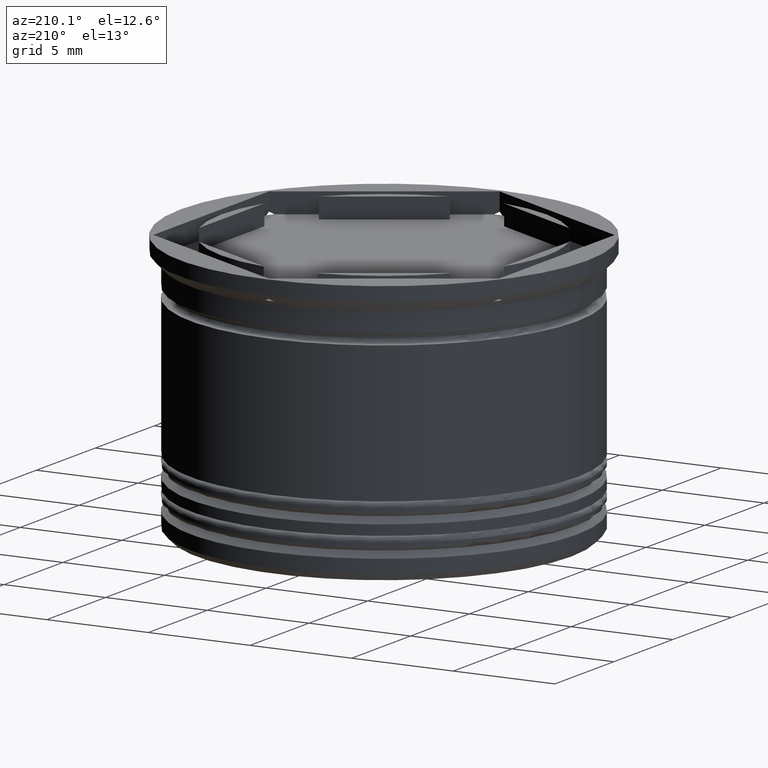
[diagram: clean part render]
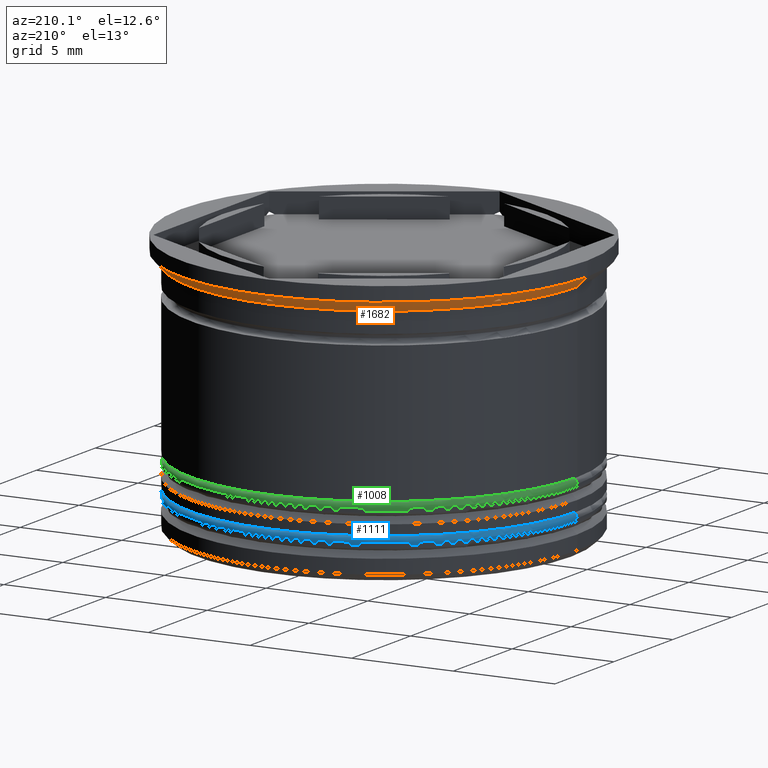
[diagram: same view with three faces highlighted in distinct colors, each labeled with its STEP entity id]
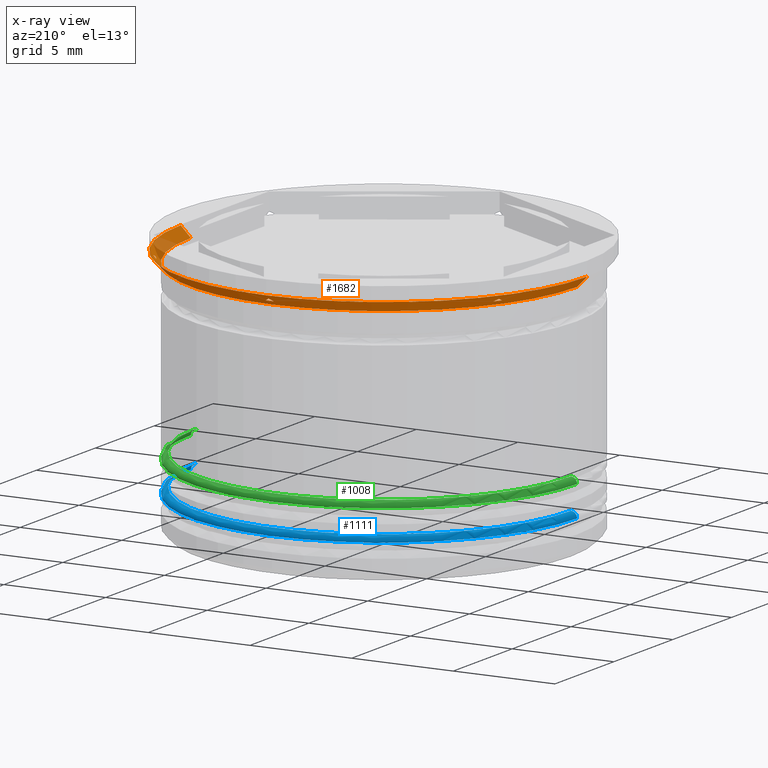
[diagram: x-ray of the same camera — body ghosted, the three highlighted faces saturated]
A machine part, auxiliary view with three faces highlighted in distinct colors.
The next image is the same camera in x-ray (body ghosted, the three faces saturated) — at least one of them is partly hidden behind the body in this view.
Their STEP definitions:

[orange] entity #1682 — the highlighted conical surface has half-angle 45 deg.
#20 = CARTESIAN_POINT ( 'NONE',  ( -0.2027787310303966195, 9.697880221277310753, -1.000000000000000000 ) ) ;
#42 = CONICAL_SURFACE ( 'NONE', #286, 10.00000000000000000, 0.7853981633974500554 ) ;
#52 = CARTESIAN_POINT ( 'NONE',  ( -8.297221268969607877, 5.024551643058147832, -1.000000000000000000 ) ) ;
#61 = CARTESIAN_POINT ( 'NONE',  ( -8.432620052822842993, 4.946379118752529003, -0.9239472544170738155 ) ) ;
#67 = B_SPLINE_CURVE_WITH_KNOTS ( 'NONE', 3,
 ( #362, #61, #1540, #52 ),
 .UNSPECIFIED., .F., .F.,
 ( 4, 4 ),
 ( 0.008247477501769871766, 0.008508082499550519151 ),
 .UNSPECIFIED. ) ;
#82 = CARTESIAN_POINT ( 'NONE',  ( 0.1349689590794702632, 9.737030211366862531, -0.9622761304077316336 ) ) ;
#87 = EDGE_LOOP ( 'NONE', ( #1096, #1020, #2056, #2139 ) ) ;
#117 = CARTESIAN_POINT ( 'NONE',  ( -8.500000000000001776, 4.829692282531611980, -0.9239379265664595664 ) ) ;
#119 = VERTEX_POINT ( 'NONE', #1427 ) ;
#160 = CARTESIAN_POINT ( 'NONE',  ( 8.500000000000000000, 4.751733060314975887, -0.9622257828001227198 ) ) ;
#189 = DIRECTION ( 'NONE',  ( -0.000000000000000000, -0.000000000000000000, 1.000000000000000000 ) ) ;
#192 = CARTESIAN_POINT ( 'NONE',  ( 8.500000000000000000, 4.907477288111820712, -0.8850454237763569765 ) ) ;
#199 = CARTESIAN_POINT ( 'NONE',  ( -8.500000000000001776, 4.907477288111815383, -0.8850454237763583087 ) ) ;
#210 = VERTEX_POINT ( 'NONE', #1975 ) ;
#248 = ORIENTED_EDGE ( 'NONE', *, *, #849, .F. ) ;
#249 = CIRCLE ( 'NONE', #1468, 9.699999999999997513 ) ;
#276 = DIRECTION ( 'NONE',  ( 1.000000000000000000, 4.618527782440651208E-14, 0.000000000000000000 ) ) ;
#286 = AXIS2_PLACEMENT_3D ( 'NONE', #1157, #856, #321 ) ;
#311 = EDGE_CURVE ( 'NONE', #1487, #766, #735, .T. ) ;
#321 = DIRECTION ( 'NONE',  ( 1.000000000000000000, 0.000000000000000000, 0.000000000000000000 ) ) ;
#325 = B_SPLINE_CURVE_WITH_KNOTS ( 'NONE', 3,
 ( #1404, #381, #82, #1862 ),
 .UNSPECIFIED., .F., .F.,
 ( 4, 4 ),
 ( 0.008247477501769861358, 0.008508082499550503539 ),
 .UNSPECIFIED. ) ;
#342 = CARTESIAN_POINT ( 'NONE',  ( 8.500000000000000000, 4.907477288111820712, -0.8850454237763569765 ) ) ;
#347 = CARTESIAN_POINT ( 'NONE',  ( 0.000000000000000000, 0.000000000000000000, -0.6999999999999968470 ) ) ;
#350 = CARTESIAN_POINT ( 'NONE',  ( 8.297221268969604324, 5.024551643058150496, -1.000000000000000000 ) ) ;
#362 = CARTESIAN_POINT ( 'NONE',  ( -8.500000000000001776, 4.907477288111815383, -0.8850454237763583087 ) ) ;
#364 = EDGE_CURVE ( 'NONE', #210, #1801, #1367, .T. ) ;
#367 = VERTEX_POINT ( 'NONE', #1280 ) ;
#369 = VERTEX_POINT ( 'NONE', #1807 ) ;
#381 = CARTESIAN_POINT ( 'NONE',  ( 0.06737994717715718729, 9.776052745582921588, -0.9239472544170742596 ) ) ;
#429 = AXIS2_PLACEMENT_3D ( 'NONE', #1829, #189, #1355 ) ;
#454 = CARTESIAN_POINT ( 'NONE',  ( -8.500000000000001776, 4.751647686047522079, -0.9622669149654721199 ) ) ;
#489 = EDGE_CURVE ( 'NONE', #1149, #766, #972, .T. ) ;
#505 = CARTESIAN_POINT ( 'NONE',  ( 8.500000000000000000, 4.907477288111820712, -0.8850454237763569765 ) ) ;
#516 = FACE_OUTER_BOUND ( 'NONE', #87, .T. ) ;
#543 = CARTESIAN_POINT ( 'NONE',  ( 0.000000000000000000, 9.814954576223637872, -0.8850454237763590859 ) ) ;
#564 = DIRECTION ( 'NONE',  ( 1.000000000000000000, 0.000000000000000000, 0.000000000000000000 ) ) ;
#576 = ORIENTED_EDGE ( 'NONE', *, *, #311, .T. ) ;
#593 = AXIS2_PLACEMENT_3D ( 'NONE', #770, #2114, #276 ) ;
#605 = CARTESIAN_POINT ( 'NONE',  ( -10.00000000000000000, 1.224646799147353256E-15, -0.6999999999999968470 ) ) ;
#609 = DIRECTION ( 'NONE',  ( 0.7071067811865487940, 0.000000000000000000, 0.7071067811865463515 ) ) ;
#632 = ORIENTED_EDGE ( 'NONE', *, *, #753, .T. ) ;
#647 = CARTESIAN_POINT ( 'NONE',  ( 8.432698576283275571, 4.946333783211517066, -0.9239019188760537737 ) ) ;
#735 = CIRCLE ( 'NONE', #593, 9.699999999999997513 ) ;
#739 = AXIS2_PLACEMENT_3D ( 'NONE', #347, #1990, #2153 ) ;
#753 = EDGE_CURVE ( 'NONE', #1288, #119, #249, .T. ) ;
#766 = VERTEX_POINT ( 'NONE', #1974 ) ;
#770 = CARTESIAN_POINT ( 'NONE',  ( 0.000000000000000000, 0.000000000000000000, -1.000000000000000000 ) ) ;
#789 = DIRECTION ( 'NONE',  ( 1.000000000000000000, 0.000000000000000000, 0.000000000000000000 ) ) ;
#849 = EDGE_CURVE ( 'NONE', #974, #119, #325, .T. ) ;
#856 = DIRECTION ( 'NONE',  ( -0.000000000000000000, -0.000000000000000000, 1.000000000000000000 ) ) ;
#870 = CARTESIAN_POINT ( 'NONE',  ( 0.000000000000000000, 0.000000000000000000, -1.000000000000000000 ) ) ;
#871 = CARTESIAN_POINT ( 'NONE',  ( 8.297221268969604324, 5.024551643058150496, -1.000000000000000000 ) ) ;
#885 = VERTEX_POINT ( 'NONE', #199 ) ;
#903 = EDGE_CURVE ( 'NONE', #367, #1413, #2105, .T. ) ;
#921 = EDGE_CURVE ( 'NONE', #885, #1413, #67, .T. ) ;
#964 = CIRCLE ( 'NONE', #429, 9.499999999999998224 ) ;
#965 = ORIENTED_EDGE ( 'NONE', *, *, #903, .T. ) ;
#972 = B_SPLINE_CURVE_WITH_KNOTS ( 'NONE', 3,
 ( #192, #1206, #160, #1838 ),
 .UNSPECIFIED., .F., .F.,
 ( 4, 4 ),
 ( 0.007081054265521771057, 0.007339969732947485698 ),
 .UNSPECIFIED. ) ;
#974 = VERTEX_POINT ( 'NONE', #543 ) ;
#982 = DIRECTION ( 'NONE',  ( -0.7071067811865487940, 8.659560562354948882E-17, 0.7071067811865463515 ) ) ;
#1020 = ORIENTED_EDGE ( 'NONE', *, *, #1631, .T. ) ;
#1044 = B_SPLINE_CURVE_WITH_KNOTS ( 'NONE', 3,
 ( #350, #1315, #647, #342 ),
 .UNSPECIFIED., .F., .F.,
 ( 4, 4 ),
 ( 0.01822403315942613955, 0.01848585035615630395 ),
 .UNSPECIFIED. ) ;
#1057 = CARTESIAN_POINT ( 'NONE',  ( -9.499999999999998224, 1.163414459189985288E-15, -1.199999999999999067 ) ) ;
#1080 = CARTESIAN_POINT ( 'NONE',  ( 10.00000000000000000, 0.000000000000000000, -0.6999999999999968470 ) ) ;
#1096 = ORIENTED_EDGE ( 'NONE', *, *, #1672, .T. ) ;
#1149 = VERTEX_POINT ( 'NONE', #505 ) ;
#1157 = CARTESIAN_POINT ( 'NONE',  ( 0.000000000000000000, 0.000000000000000000, -0.6999999999999968470 ) ) ;
#1164 = AXIS2_PLACEMENT_3D ( 'NONE', #870, #2061, #564 ) ;
#1168 = EDGE_CURVE ( 'NONE', #1487, #1149, #1044, .T. ) ;
#1186 = EDGE_LOOP ( 'NONE', ( #2155, #965, #2013 ) ) ;
#1190 = FACE_BOUND ( 'NONE', #1870, .T. ) ;
#1200 = VECTOR ( 'NONE', #982, 1000.000000000000000 ) ;
#1206 = CARTESIAN_POINT ( 'NONE',  ( 8.500000000000000000, 4.829775330622932294, -0.9238964025208142861 ) ) ;
#1229 = CARTESIAN_POINT ( 'NONE',  ( -8.297221268969607877, 5.024551643058147832, -1.000000000000000000 ) ) ;
#1271 = EDGE_CURVE ( 'NONE', #1801, #369, #2069, .T. ) ;
#1280 = CARTESIAN_POINT ( 'NONE',  ( -8.500000000000001776, 4.673328578219158480, -1.000000000000000000 ) ) ;
#1288 = VERTEX_POINT ( 'NONE', #1320 ) ;
#1315 = CARTESIAN_POINT ( 'NONE',  ( 8.365111701610441486, 4.985355083497563733, -0.9622312573273479330 ) ) ;
#1320 = CARTESIAN_POINT ( 'NONE',  ( -0.2027787310303966195, 9.697880221277310753, -1.000000000000000000 ) ) ;
#1342 = FACE_BOUND ( 'NONE', #1632, .T. ) ;
#1351 = EDGE_CURVE ( 'NONE', #1288, #974, #1593, .T. ) ;
#1355 = DIRECTION ( 'NONE',  ( 1.000000000000000000, 0.000000000000000000, 0.000000000000000000 ) ) ;
#1367 = LINE ( 'NONE', #1080, #2064 ) ;
#1377 = ORIENTED_EDGE ( 'NONE', *, *, #1351, .F. ) ;
#1404 = CARTESIAN_POINT ( 'NONE',  ( 0.000000000000000000, 9.814954576223637872, -0.8850454237763590859 ) ) ;
#1413 = VERTEX_POINT ( 'NONE', #1229 ) ;
#1427 = CARTESIAN_POINT ( 'NONE',  ( 0.2027787310303922896, 9.697880221277308976, -1.000000000000000000 ) ) ;
#1465 = EDGE_CURVE ( 'NONE', #367, #885, #1545, .T. ) ;
#1468 = AXIS2_PLACEMENT_3D ( 'NONE', #1758, #1606, #789 ) ;
#1487 = VERTEX_POINT ( 'NONE', #871 ) ;
#1500 = ORIENTED_EDGE ( 'NONE', *, *, #489, .F. ) ;
#1540 = CARTESIAN_POINT ( 'NONE',  ( -8.365031040920529293, 4.985401652968591613, -0.9622761304077311895 ) ) ;
#1545 = B_SPLINE_CURVE_WITH_KNOTS ( 'NONE', 3,
 ( #1945, #454, #117, #1613 ),
 .UNSPECIFIED., .F., .F.,
 ( 4, 4 ),
 ( 0.01704092202293523012, 0.01730192662281647767 ),
 .UNSPECIFIED. ) ;
#1560 = CARTESIAN_POINT ( 'NONE',  ( 0.000000000000000000, 9.814954576223637872, -0.8850454237763590859 ) ) ;
#1593 = B_SPLINE_CURVE_WITH_KNOTS ( 'NONE', 3,
 ( #20, #2021, #1851, #1560 ),
 .UNSPECIFIED., .F., .F.,
 ( 4, 4 ),
 ( 0.01822403315942615690, 0.01848585035615632477 ),
 .UNSPECIFIED. ) ;
#1595 = LINE ( 'NONE', #605, #1200 ) ;
#1606 = DIRECTION ( 'NONE',  ( -0.000000000000000000, -0.000000000000000000, -1.000000000000000000 ) ) ;
#1613 = CARTESIAN_POINT ( 'NONE',  ( -8.500000000000001776, 4.907477288111815383, -0.8850454237763583087 ) ) ;
#1631 = EDGE_CURVE ( 'NONE', #2131, #369, #1595, .T. ) ;
#1632 = EDGE_LOOP ( 'NONE', ( #1797, #576, #1500 ) ) ;
#1672 = EDGE_CURVE ( 'NONE', #210, #2131, #964, .T. ) ;
#1682 = ADVANCED_FACE ( 'NONE', ( #1342, #1190, #1836, #516 ), #42, .T. ) ;
#1758 = CARTESIAN_POINT ( 'NONE',  ( 0.000000000000000000, 0.000000000000000000, -1.000000000000000000 ) ) ;
#1797 = ORIENTED_EDGE ( 'NONE', *, *, #1168, .F. ) ;
#1801 = VERTEX_POINT ( 'NONE', #2173 ) ;
#1807 = CARTESIAN_POINT ( 'NONE',  ( -10.00000000000000000, 1.224646799147353256E-15, -0.6999999999999968470 ) ) ;
#1829 = CARTESIAN_POINT ( 'NONE',  ( 0.000000000000000000, 0.000000000000000000, -1.199999999999999067 ) ) ;
#1836 = FACE_BOUND ( 'NONE', #1186, .T. ) ;
#1838 = CARTESIAN_POINT ( 'NONE',  ( 8.500000000000000000, 4.673328578219161145, -1.000000000000000000 ) ) ;
#1851 = CARTESIAN_POINT ( 'NONE',  ( -0.06730142371672365176, 9.776098081123940631, -0.9239019188760544399 ) ) ;
#1862 = CARTESIAN_POINT ( 'NONE',  ( 0.2027787310303922896, 9.697880221277308976, -1.000000000000000000 ) ) ;
#1870 = EDGE_LOOP ( 'NONE', ( #248, #1377, #632 ) ) ;
#1945 = CARTESIAN_POINT ( 'NONE',  ( -8.500000000000001776, 4.673328578219158480, -1.000000000000000000 ) ) ;
#1974 = CARTESIAN_POINT ( 'NONE',  ( 8.500000000000000000, 4.673328578219161145, -1.000000000000000000 ) ) ;
#1975 = CARTESIAN_POINT ( 'NONE',  ( 9.499999999999998224, 0.000000000000000000, -1.199999999999999067 ) ) ;
#1990 = DIRECTION ( 'NONE',  ( -0.000000000000000000, -0.000000000000000000, 1.000000000000000000 ) ) ;
#2013 = ORIENTED_EDGE ( 'NONE', *, *, #921, .F. ) ;
#2021 = CARTESIAN_POINT ( 'NONE',  ( -0.1348882983895599019, 9.737076780837895740, -0.9622312573273492653 ) ) ;
#2056 = ORIENTED_EDGE ( 'NONE', *, *, #1271, .F. ) ;
#2061 = DIRECTION ( 'NONE',  ( -0.000000000000000000, -0.000000000000000000, -1.000000000000000000 ) ) ;
#2064 = VECTOR ( 'NONE', #609, 1000.000000000000000 ) ;
#2069 = CIRCLE ( 'NONE', #739, 10.00000000000000000 ) ;
#2105 = CIRCLE ( 'NONE', #1164, 9.699999999999997513 ) ;
#2114 = DIRECTION ( 'NONE',  ( -0.000000000000000000, -0.000000000000000000, -1.000000000000000000 ) ) ;
#2131 = VERTEX_POINT ( 'NONE', #1057 ) ;
#2139 = ORIENTED_EDGE ( 'NONE', *, *, #364, .F. ) ;
#2153 = DIRECTION ( 'NONE',  ( -1.000000000000000000, 0.000000000000000000, 0.000000000000000000 ) ) ;
#2155 = ORIENTED_EDGE ( 'NONE', *, *, #1465, .F. ) ;
#2173 = CARTESIAN_POINT ( 'NONE',  ( 10.00000000000000000, 0.000000000000000000, -0.6999999999999968470 ) ) ;

[blue] entity #1111 — the highlighted toroidal blend (fillet) surface has major radius 9.2 mm and minor (blend) radius 0.3 mm.
#22 = EDGE_CURVE ( 'NONE', #1128, #1324, #1158, .T. ) ;
#112 = DIRECTION ( 'NONE',  ( -1.000000000000000000, 0.000000000000000000, 0.000000000000000000 ) ) ;
#204 = ORIENTED_EDGE ( 'NONE', *, *, #754, .F. ) ;
#217 = CARTESIAN_POINT ( 'NONE',  ( 0.000000000000000000, 0.000000000000000000, -11.00000000000000000 ) ) ;
#270 = ORIENTED_EDGE ( 'NONE', *, *, #2093, .T. ) ;
#298 = FACE_OUTER_BOUND ( 'NONE', #1505, .T. ) ;
#353 = TOROIDAL_SURFACE ( 'NONE', #427, 9.200000000000001066, 0.2999999999999999889 ) ;
#388 = VERTEX_POINT ( 'NONE', #1452 ) ;
#427 = AXIS2_PLACEMENT_3D ( 'NONE', #954, #1605, #112 ) ;
#463 = ORIENTED_EDGE ( 'NONE', *, *, #22, .F. ) ;
#497 = DIRECTION ( 'NONE',  ( -1.000000000000000000, -1.224646799147353207E-16, 0.000000000000000000 ) ) ;
#501 = CARTESIAN_POINT ( 'NONE',  ( 9.500000000000001776, 0.000000000000000000, -11.29999999999999716 ) ) ;
#594 = AXIS2_PLACEMENT_3D ( 'NONE', #217, #2043, #1084 ) ;
#600 = CIRCLE ( 'NONE', #1004, 0.2999999999999999334 ) ;
#616 = EDGE_CURVE ( 'NONE', #388, #1338, #919, .T. ) ;
#640 = DIRECTION ( 'NONE',  ( -0.000000000000000000, -1.000000000000000000, -0.000000000000000000 ) ) ;
#659 = AXIS2_PLACEMENT_3D ( 'NONE', #913, #740, #1891 ) ;
#740 = DIRECTION ( 'NONE',  ( 0.000000000000000000, 0.000000000000000000, -1.000000000000000000 ) ) ;
#754 = EDGE_CURVE ( 'NONE', #1338, #1128, #1362, .T. ) ;
#823 = DIRECTION ( 'NONE',  ( -1.224646799147353207E-16, 1.000000000000000000, 0.000000000000000000 ) ) ;
#913 = CARTESIAN_POINT ( 'NONE',  ( 0.000000000000000000, 0.000000000000000000, -11.29999999999999716 ) ) ;
#919 = CIRCLE ( 'NONE', #594, 9.200000000000001066 ) ;
#954 = CARTESIAN_POINT ( 'NONE',  ( 0.000000000000000000, 0.000000000000000000, -11.29999999999999716 ) ) ;
#1004 = AXIS2_PLACEMENT_3D ( 'NONE', #1611, #823, #497 ) ;
#1006 = CARTESIAN_POINT ( 'NONE',  ( -9.500000000000001776, 1.163414459189985682E-15, -11.29999999999999716 ) ) ;
#1084 = DIRECTION ( 'NONE',  ( -1.000000000000000000, 0.000000000000000000, 0.000000000000000000 ) ) ;
#1111 = ADVANCED_FACE ( 'NONE', ( #298 ), #353, .T. ) ;
#1128 = VERTEX_POINT ( 'NONE', #1006 ) ;
#1158 = CIRCLE ( 'NONE', #659, 9.500000000000001776 ) ;
#1274 = CARTESIAN_POINT ( 'NONE',  ( -9.200000000000001066, 0.000000000000000000, -11.29999999999999716 ) ) ;
#1316 = DIRECTION ( 'NONE',  ( 0.000000000000000000, 0.000000000000000000, -1.000000000000000000 ) ) ;
#1324 = VERTEX_POINT ( 'NONE', #501 ) ;
#1338 = VERTEX_POINT ( 'NONE', #1490 ) ;
#1362 = CIRCLE ( 'NONE', #1433, 0.2999999999999999334 ) ;
#1433 = AXIS2_PLACEMENT_3D ( 'NONE', #1274, #640, #1316 ) ;
#1452 = CARTESIAN_POINT ( 'NONE',  ( 9.200000000000001066, 1.145044757202775450E-15, -11.00000000000000000 ) ) ;
#1490 = CARTESIAN_POINT ( 'NONE',  ( -9.200000000000001066, 0.000000000000000000, -11.00000000000000000 ) ) ;
#1505 = EDGE_LOOP ( 'NONE', ( #1684, #270, #463, #204 ) ) ;
#1605 = DIRECTION ( 'NONE',  ( 0.000000000000000000, 0.000000000000000000, -1.000000000000000000 ) ) ;
#1611 = CARTESIAN_POINT ( 'NONE',  ( 9.200000000000001066, 1.126675055215565020E-15, -11.29999999999999716 ) ) ;
#1684 = ORIENTED_EDGE ( 'NONE', *, *, #616, .F. ) ;
#1891 = DIRECTION ( 'NONE',  ( -1.000000000000000000, 0.000000000000000000, 0.000000000000000000 ) ) ;
#2043 = DIRECTION ( 'NONE',  ( -0.000000000000000000, -0.000000000000000000, 1.000000000000000000 ) ) ;
#2093 = EDGE_CURVE ( 'NONE', #388, #1324, #600, .T. ) ;

[green] entity #1008 — the highlighted toroidal blend (fillet) surface has major radius 9.2 mm and minor (blend) radius 0.3 mm.
#101 = DIRECTION ( 'NONE',  ( 0.000000000000000000, 0.000000000000000000, -1.000000000000000000 ) ) ;
#126 = CARTESIAN_POINT ( 'NONE',  ( -9.500000000000001776, 1.163414459189985682E-15, -9.799999999999998934 ) ) ;
#134 = DIRECTION ( 'NONE',  ( 0.000000000000000000, 0.000000000000000000, -1.000000000000000000 ) ) ;
#301 = DIRECTION ( 'NONE',  ( -1.000000000000000000, 0.000000000000000000, 0.000000000000000000 ) ) ;
#402 = VERTEX_POINT ( 'NONE', #792 ) ;
#451 = CARTESIAN_POINT ( 'NONE',  ( 0.000000000000000000, 0.000000000000000000, -9.500000000000000000 ) ) ;
#466 = AXIS2_PLACEMENT_3D ( 'NONE', #1415, #2042, #1574 ) ;
#530 = CIRCLE ( 'NONE', #2028, 0.2999999999999999334 ) ;
#607 = DIRECTION ( 'NONE',  ( -1.000000000000000000, 0.000000000000000000, 0.000000000000000000 ) ) ;
#638 = AXIS2_PLACEMENT_3D ( 'NONE', #451, #1586, #607 ) ;
#703 = EDGE_CURVE ( 'NONE', #1970, #1933, #1306, .T. ) ;
#792 = CARTESIAN_POINT ( 'NONE',  ( -9.200000000000001066, 0.000000000000000000, -9.500000000000000000 ) ) ;
#834 = EDGE_CURVE ( 'NONE', #2034, #1933, #530, .T. ) ;
#946 = CARTESIAN_POINT ( 'NONE',  ( 9.200000000000001066, 1.145044757202775450E-15, -9.500000000000000000 ) ) ;
#951 = EDGE_CURVE ( 'NONE', #402, #1970, #1231, .T. ) ;
#1000 = AXIS2_PLACEMENT_3D ( 'NONE', #1756, #101, #1794 ) ;
#1008 = ADVANCED_FACE ( 'NONE', ( #1743 ), #1402, .T. ) ;
#1019 = CARTESIAN_POINT ( 'NONE',  ( 9.200000000000001066, 1.126675055215565020E-15, -9.799999999999998934 ) ) ;
#1097 = ORIENTED_EDGE ( 'NONE', *, *, #834, .T. ) ;
#1226 = CARTESIAN_POINT ( 'NONE',  ( 9.500000000000001776, 0.000000000000000000, -9.799999999999998934 ) ) ;
#1231 = CIRCLE ( 'NONE', #466, 0.2999999999999999334 ) ;
#1306 = CIRCLE ( 'NONE', #1995, 9.500000000000001776 ) ;
#1398 = ORIENTED_EDGE ( 'NONE', *, *, #1981, .F. ) ;
#1402 = TOROIDAL_SURFACE ( 'NONE', #1000, 9.200000000000001066, 0.2999999999999999889 ) ;
#1415 = CARTESIAN_POINT ( 'NONE',  ( -9.200000000000001066, 0.000000000000000000, -9.799999999999998934 ) ) ;
#1514 = DIRECTION ( 'NONE',  ( -1.000000000000000000, -1.224646799147353207E-16, 0.000000000000000000 ) ) ;
#1520 = ORIENTED_EDGE ( 'NONE', *, *, #703, .F. ) ;
#1574 = DIRECTION ( 'NONE',  ( 0.000000000000000000, 0.000000000000000000, -1.000000000000000000 ) ) ;
#1586 = DIRECTION ( 'NONE',  ( -0.000000000000000000, -0.000000000000000000, 1.000000000000000000 ) ) ;
#1659 = DIRECTION ( 'NONE',  ( -1.224646799147353207E-16, 1.000000000000000000, 0.000000000000000000 ) ) ;
#1677 = CIRCLE ( 'NONE', #638, 9.200000000000001066 ) ;
#1743 = FACE_OUTER_BOUND ( 'NONE', #1904, .T. ) ;
#1756 = CARTESIAN_POINT ( 'NONE',  ( 0.000000000000000000, 0.000000000000000000, -9.799999999999998934 ) ) ;
#1767 = CARTESIAN_POINT ( 'NONE',  ( 0.000000000000000000, 0.000000000000000000, -9.799999999999998934 ) ) ;
#1794 = DIRECTION ( 'NONE',  ( -1.000000000000000000, 0.000000000000000000, 0.000000000000000000 ) ) ;
#1904 = EDGE_LOOP ( 'NONE', ( #1398, #1097, #1520, #2121 ) ) ;
#1933 = VERTEX_POINT ( 'NONE', #1226 ) ;
#1970 = VERTEX_POINT ( 'NONE', #126 ) ;
#1981 = EDGE_CURVE ( 'NONE', #2034, #402, #1677, .T. ) ;
#1995 = AXIS2_PLACEMENT_3D ( 'NONE', #1767, #134, #301 ) ;
#2028 = AXIS2_PLACEMENT_3D ( 'NONE', #1019, #1659, #1514 ) ;
#2034 = VERTEX_POINT ( 'NONE', #946 ) ;
#2042 = DIRECTION ( 'NONE',  ( -0.000000000000000000, -1.000000000000000000, -0.000000000000000000 ) ) ;
#2121 = ORIENTED_EDGE ( 'NONE', *, *, #951, .F. ) ;